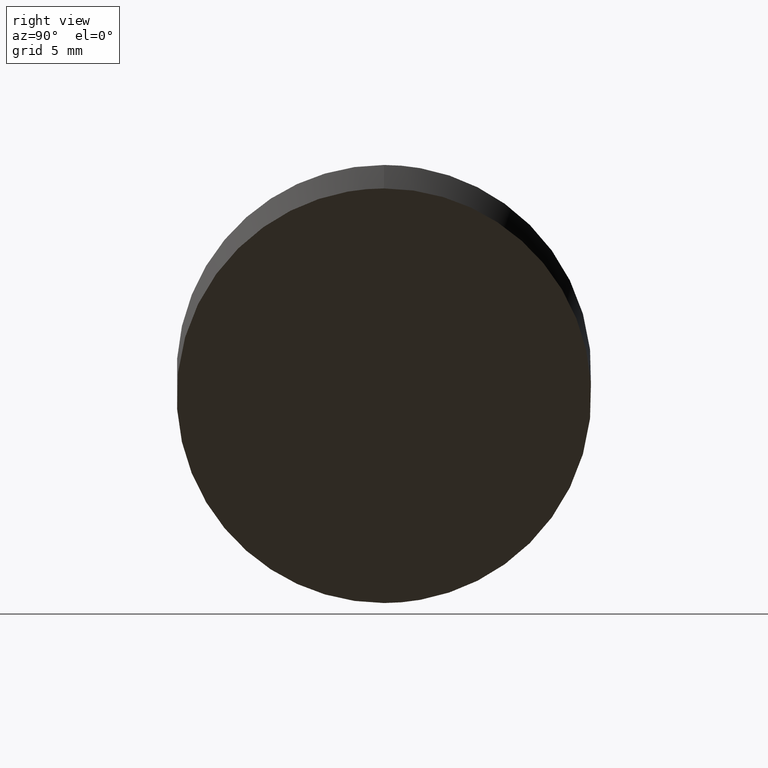
[diagram: clean part render]
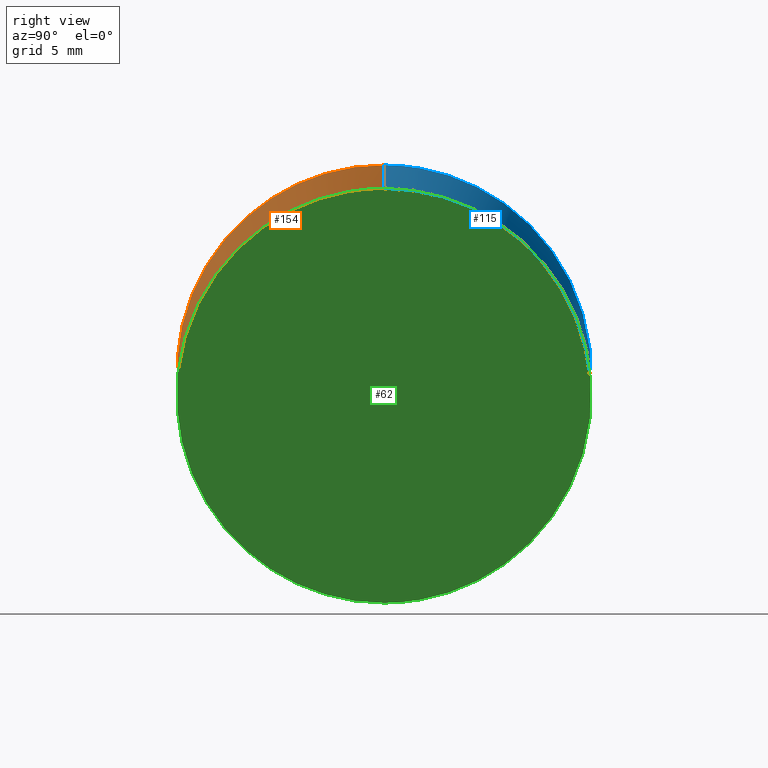
[diagram: same view with three faces highlighted in distinct colors, each labeled with its STEP entity id]
A machine part, right view with three faces highlighted in distinct colors.
Their STEP definitions:

[orange] entity #154 — the highlighted cylindrical surface (partial cylindrical patch) has radius 12.5 mm, axis along (-0, -0, -1).
#5 = EDGE_LOOP ( 'NONE', ( #91, #171, #103, #152 ) ) ;
#6 = EDGE_CURVE ( 'NONE', #76, #170, #34, .T. ) ;
#7 = CARTESIAN_POINT ( 'NONE',  ( 12.50000000000000000, 1.530808498934191127E-15, 61.00000000000001421 ) ) ;
#21 = CARTESIAN_POINT ( 'NONE',  ( 12.50000000000000000, 1.530808498934191127E-15, 31.94806303505680489 ) ) ;
#22 = CARTESIAN_POINT ( 'NONE',  ( 12.50000000000000000, -25.00000000000000000, 30.53384947268371263 ) ) ;
#24 = CARTESIAN_POINT ( 'NONE',  ( -12.50000000000000000, 0.000000000000000000, 6.948063035056913250 ) ) ;
#25 = LINE ( 'NONE', #7, #38 ) ;
#27 = FACE_OUTER_BOUND ( 'NONE', #5, .T. ) ;
#28 = DIRECTION ( 'NONE',  ( -0.000000000000000000, -0.000000000000000000, -1.000000000000000000 ) ) ;
#31 = VERTEX_POINT ( 'NONE', #24 ) ;
#33 = CARTESIAN_POINT ( 'NONE',  ( -12.50000000000000533, -25.00000000000000000, 6.948063035056907921 ) ) ;
#34 =( BOUNDED_CURVE ( )  B_SPLINE_CURVE ( 3, ( #77, #104, #22, #102 ),
 .UNSPECIFIED., .F., .T. ) 
 B_SPLINE_CURVE_WITH_KNOTS ( ( 4, 4 ),
 ( 0.000000000000000000, 3.141592653589793116 ),
 .UNSPECIFIED. ) 
 CURVE ( )  GEOMETRIC_REPRESENTATION_ITEM ( )  RATIONAL_B_SPLINE_CURVE ( ( 1.000000000000000000, 0.3333333333333333703, 0.3333333333333333703, 1.000000000000000000 ) ) 
 REPRESENTATION_ITEM ( '' )  );
#37 = DIRECTION ( 'NONE',  ( -1.000000000000000000, 0.000000000000000000, 0.000000000000000000 ) ) ;
#38 = VECTOR ( 'NONE', #69, 1000.000000000000000 ) ;
#50 = EDGE_CURVE ( 'NONE', #105, #31, #74, .T. ) ;
#56 = CARTESIAN_POINT ( 'NONE',  ( 12.50000000000000000, 1.530808498934191127E-15, 31.94806303505680489 ) ) ;
#59 = VECTOR ( 'NONE', #150, 1000.000000000000000 ) ;
#63 = CARTESIAN_POINT ( 'NONE',  ( 12.50000000000000000, 1.530808498934191127E-15, 30.53384947268370908 ) ) ;
#69 = DIRECTION ( 'NONE',  ( -0.000000000000000000, -0.000000000000000000, -1.000000000000000000 ) ) ;
#74 =( BOUNDED_CURVE ( )  B_SPLINE_CURVE ( 3, ( #21, #114, #33, #90 ),
 .UNSPECIFIED., .F., .T. ) 
 B_SPLINE_CURVE_WITH_KNOTS ( ( 4, 4 ),
 ( 3.141592653589793116, 6.283185307179586232 ),
 .UNSPECIFIED. ) 
 CURVE ( )  GEOMETRIC_REPRESENTATION_ITEM ( )  RATIONAL_B_SPLINE_CURVE ( ( 1.000000000000000000, 0.3333333333333333703, 0.3333333333333333703, 1.000000000000000000 ) ) 
 REPRESENTATION_ITEM ( '' )  );
#76 = VERTEX_POINT ( 'NONE', #79 ) ;
#77 = CARTESIAN_POINT ( 'NONE',  ( -12.50000000000000000, 0.000000000000000000, 5.533849472683822768 ) ) ;
#79 = CARTESIAN_POINT ( 'NONE',  ( -12.50000000000000000, 0.000000000000000000, 5.533849472683822768 ) ) ;
#81 = CARTESIAN_POINT ( 'NONE',  ( 0.000000000000000000, 0.000000000000000000, 61.00000000000001421 ) ) ;
#82 = CYLINDRICAL_SURFACE ( 'NONE', #134, 12.50000000000000000 ) ;
#83 = LINE ( 'NONE', #135, #59 ) ;
#90 = CARTESIAN_POINT ( 'NONE',  ( -12.50000000000000000, 0.000000000000000000, 6.948063035056913250 ) ) ;
#91 = ORIENTED_EDGE ( 'NONE', *, *, #92, .F. ) ;
#92 = EDGE_CURVE ( 'NONE', #105, #170, #25, .T. ) ;
#102 = CARTESIAN_POINT ( 'NONE',  ( 12.50000000000000000, 1.530808498934191127E-15, 30.53384947268370908 ) ) ;
#103 = ORIENTED_EDGE ( 'NONE', *, *, #160, .T. ) ;
#104 = CARTESIAN_POINT ( 'NONE',  ( -12.50000000000000533, -25.00000000000000000, 5.533849472683815662 ) ) ;
#105 = VERTEX_POINT ( 'NONE', #56 ) ;
#114 = CARTESIAN_POINT ( 'NONE',  ( 12.50000000000001066, -25.00000000000000000, 31.94806303505681910 ) ) ;
#134 = AXIS2_PLACEMENT_3D ( 'NONE', #81, #28, #37 ) ;
#135 = CARTESIAN_POINT ( 'NONE',  ( -12.50000000000000000, 0.000000000000000000, 61.00000000000001421 ) ) ;
#150 = DIRECTION ( 'NONE',  ( -0.000000000000000000, -0.000000000000000000, -1.000000000000000000 ) ) ;
#152 = ORIENTED_EDGE ( 'NONE', *, *, #6, .T. ) ;
#154 = ADVANCED_FACE ( 'NONE', ( #27 ), #82, .T. ) ;
#160 = EDGE_CURVE ( 'NONE', #31, #76, #83, .T. ) ;
#170 = VERTEX_POINT ( 'NONE', #63 ) ;
#171 = ORIENTED_EDGE ( 'NONE', *, *, #50, .T. ) ;

[blue] entity #115 — the highlighted cylindrical surface (partial cylindrical patch) has radius 12.5 mm, axis along (-0, -0, -1).
#1 = CARTESIAN_POINT ( 'NONE',  ( -12.50000000000000000, 0.000000000000000000, 6.948063035056913250 ) ) ;
#4 = CARTESIAN_POINT ( 'NONE',  ( -12.50000000000000000, 0.000000000000000000, 5.533849472683822768 ) ) ;
#7 = CARTESIAN_POINT ( 'NONE',  ( 12.50000000000000000, 1.530808498934191127E-15, 61.00000000000001421 ) ) ;
#10 = CARTESIAN_POINT ( 'NONE',  ( 0.000000000000000000, 0.000000000000000000, 61.00000000000001421 ) ) ;
#12 = AXIS2_PLACEMENT_3D ( 'NONE', #10, #120, #93 ) ;
#15 = EDGE_CURVE ( 'NONE', #170, #76, #155, .T. ) ;
#24 = CARTESIAN_POINT ( 'NONE',  ( -12.50000000000000000, 0.000000000000000000, 6.948063035056913250 ) ) ;
#25 = LINE ( 'NONE', #7, #38 ) ;
#31 = VERTEX_POINT ( 'NONE', #24 ) ;
#35 = CARTESIAN_POINT ( 'NONE',  ( -12.50000000000000533, 25.00000000000000000, 5.533849472683815662 ) ) ;
#38 = VECTOR ( 'NONE', #69, 1000.000000000000000 ) ;
#42 = CARTESIAN_POINT ( 'NONE',  ( -12.50000000000000533, 25.00000000000000000, 6.948063035056907921 ) ) ;
#47 = ORIENTED_EDGE ( 'NONE', *, *, #78, .T. ) ;
#48 = CARTESIAN_POINT ( 'NONE',  ( 12.50000000000000000, 1.530808498934191127E-15, 30.53384947268370908 ) ) ;
#49 = EDGE_LOOP ( 'NONE', ( #47, #72, #157, #61 ) ) ;
#56 = CARTESIAN_POINT ( 'NONE',  ( 12.50000000000000000, 1.530808498934191127E-15, 31.94806303505680489 ) ) ;
#59 = VECTOR ( 'NONE', #150, 1000.000000000000000 ) ;
#61 = ORIENTED_EDGE ( 'NONE', *, *, #160, .F. ) ;
#63 = CARTESIAN_POINT ( 'NONE',  ( 12.50000000000000000, 1.530808498934191127E-15, 30.53384947268370908 ) ) ;
#69 = DIRECTION ( 'NONE',  ( -0.000000000000000000, -0.000000000000000000, -1.000000000000000000 ) ) ;
#72 = ORIENTED_EDGE ( 'NONE', *, *, #92, .T. ) ;
#76 = VERTEX_POINT ( 'NONE', #79 ) ;
#78 = EDGE_CURVE ( 'NONE', #31, #105, #98, .T. ) ;
#79 = CARTESIAN_POINT ( 'NONE',  ( -12.50000000000000000, 0.000000000000000000, 5.533849472683822768 ) ) ;
#83 = LINE ( 'NONE', #135, #59 ) ;
#92 = EDGE_CURVE ( 'NONE', #105, #170, #25, .T. ) ;
#93 = DIRECTION ( 'NONE',  ( -1.000000000000000000, 0.000000000000000000, 0.000000000000000000 ) ) ;
#94 = CARTESIAN_POINT ( 'NONE',  ( 12.50000000000000000, 1.530808498934191127E-15, 31.94806303505680489 ) ) ;
#98 =( BOUNDED_CURVE ( )  B_SPLINE_CURVE ( 3, ( #1, #42, #146, #94 ),
 .UNSPECIFIED., .F., .T. ) 
 B_SPLINE_CURVE_WITH_KNOTS ( ( 4, 4 ),
 ( 0.000000000000000000, 3.141592653589793116 ),
 .UNSPECIFIED. ) 
 CURVE ( )  GEOMETRIC_REPRESENTATION_ITEM ( )  RATIONAL_B_SPLINE_CURVE ( ( 1.000000000000000000, 0.3333333333333333703, 0.3333333333333333703, 1.000000000000000000 ) ) 
 REPRESENTATION_ITEM ( '' )  );
#105 = VERTEX_POINT ( 'NONE', #56 ) ;
#115 = ADVANCED_FACE ( 'NONE', ( #147 ), #164, .T. ) ;
#120 = DIRECTION ( 'NONE',  ( -0.000000000000000000, -0.000000000000000000, -1.000000000000000000 ) ) ;
#135 = CARTESIAN_POINT ( 'NONE',  ( -12.50000000000000000, 0.000000000000000000, 61.00000000000001421 ) ) ;
#142 = CARTESIAN_POINT ( 'NONE',  ( 12.50000000000001066, 25.00000000000000000, 30.53384947268371974 ) ) ;
#146 = CARTESIAN_POINT ( 'NONE',  ( 12.50000000000000000, 25.00000000000000000, 31.94806303505681910 ) ) ;
#147 = FACE_OUTER_BOUND ( 'NONE', #49, .T. ) ;
#150 = DIRECTION ( 'NONE',  ( -0.000000000000000000, -0.000000000000000000, -1.000000000000000000 ) ) ;
#155 =( BOUNDED_CURVE ( )  B_SPLINE_CURVE ( 3, ( #48, #142, #35, #4 ),
 .UNSPECIFIED., .F., .T. ) 
 B_SPLINE_CURVE_WITH_KNOTS ( ( 4, 4 ),
 ( 3.141592653589793116, 6.283185307179586232 ),
 .UNSPECIFIED. ) 
 CURVE ( )  GEOMETRIC_REPRESENTATION_ITEM ( )  RATIONAL_B_SPLINE_CURVE ( ( 1.000000000000000000, 0.3333333333333333703, 0.3333333333333333703, 1.000000000000000000 ) ) 
 REPRESENTATION_ITEM ( '' )  );
#157 = ORIENTED_EDGE ( 'NONE', *, *, #15, .T. ) ;
#160 = EDGE_CURVE ( 'NONE', #31, #76, #83, .T. ) ;
#164 = CYLINDRICAL_SURFACE ( 'NONE', #12, 12.50000000000000000 ) ;
#170 = VERTEX_POINT ( 'NONE', #63 ) ;

[green] entity #62 — the highlighted planar face has unit normal (-0.7071, 0, 0.7071).
#4 = CARTESIAN_POINT ( 'NONE',  ( -12.50000000000000000, 0.000000000000000000, 5.533849472683822768 ) ) ;
#6 = EDGE_CURVE ( 'NONE', #76, #170, #34, .T. ) ;
#15 = EDGE_CURVE ( 'NONE', #170, #76, #155, .T. ) ;
#22 = CARTESIAN_POINT ( 'NONE',  ( 12.50000000000000000, -25.00000000000000000, 30.53384947268371263 ) ) ;
#23 = DIRECTION ( 'NONE',  ( 0.7071067811865490160, 0.000000000000000000, 0.7071067811865460184 ) ) ;
#34 =( BOUNDED_CURVE ( )  B_SPLINE_CURVE ( 3, ( #77, #104, #22, #102 ),
 .UNSPECIFIED., .F., .T. ) 
 B_SPLINE_CURVE_WITH_KNOTS ( ( 4, 4 ),
 ( 0.000000000000000000, 3.141592653589793116 ),
 .UNSPECIFIED. ) 
 CURVE ( )  GEOMETRIC_REPRESENTATION_ITEM ( )  RATIONAL_B_SPLINE_CURVE ( ( 1.000000000000000000, 0.3333333333333333703, 0.3333333333333333703, 1.000000000000000000 ) ) 
 REPRESENTATION_ITEM ( '' )  );
#35 = CARTESIAN_POINT ( 'NONE',  ( -12.50000000000000533, 25.00000000000000000, 5.533849472683815662 ) ) ;
#48 = CARTESIAN_POINT ( 'NONE',  ( 12.50000000000000000, 1.530808498934191127E-15, 30.53384947268370908 ) ) ;
#51 = EDGE_LOOP ( 'NONE', ( #172, #111 ) ) ;
#62 = ADVANCED_FACE ( 'NONE', ( #128 ), #145, .F. ) ;
#63 = CARTESIAN_POINT ( 'NONE',  ( 12.50000000000000000, 1.530808498934191127E-15, 30.53384947268370908 ) ) ;
#76 = VERTEX_POINT ( 'NONE', #79 ) ;
#77 = CARTESIAN_POINT ( 'NONE',  ( -12.50000000000000000, 0.000000000000000000, 5.533849472683822768 ) ) ;
#79 = CARTESIAN_POINT ( 'NONE',  ( -12.50000000000000000, 0.000000000000000000, 5.533849472683822768 ) ) ;
#102 = CARTESIAN_POINT ( 'NONE',  ( 12.50000000000000000, 1.530808498934191127E-15, 30.53384947268370908 ) ) ;
#104 = CARTESIAN_POINT ( 'NONE',  ( -12.50000000000000533, -25.00000000000000000, 5.533849472683815662 ) ) ;
#111 = ORIENTED_EDGE ( 'NONE', *, *, #15, .F. ) ;
#116 = AXIS2_PLACEMENT_3D ( 'NONE', #117, #125, #23 ) ;
#117 = CARTESIAN_POINT ( 'NONE',  ( -39.37834046142902622, -30.50000000000000711, -21.34449098874508977 ) ) ;
#125 = DIRECTION ( 'NONE',  ( -0.7071067811865460184, 0.000000000000000000, 0.7071067811865490160 ) ) ;
#128 = FACE_OUTER_BOUND ( 'NONE', #51, .T. ) ;
#142 = CARTESIAN_POINT ( 'NONE',  ( 12.50000000000001066, 25.00000000000000000, 30.53384947268371974 ) ) ;
#145 = PLANE ( 'NONE',  #116 ) ;
#155 =( BOUNDED_CURVE ( )  B_SPLINE_CURVE ( 3, ( #48, #142, #35, #4 ),
 .UNSPECIFIED., .F., .T. ) 
 B_SPLINE_CURVE_WITH_KNOTS ( ( 4, 4 ),
 ( 3.141592653589793116, 6.283185307179586232 ),
 .UNSPECIFIED. ) 
 CURVE ( )  GEOMETRIC_REPRESENTATION_ITEM ( )  RATIONAL_B_SPLINE_CURVE ( ( 1.000000000000000000, 0.3333333333333333703, 0.3333333333333333703, 1.000000000000000000 ) ) 
 REPRESENTATION_ITEM ( '' )  );
#170 = VERTEX_POINT ( 'NONE', #63 ) ;
#172 = ORIENTED_EDGE ( 'NONE', *, *, #6, .F. ) ;